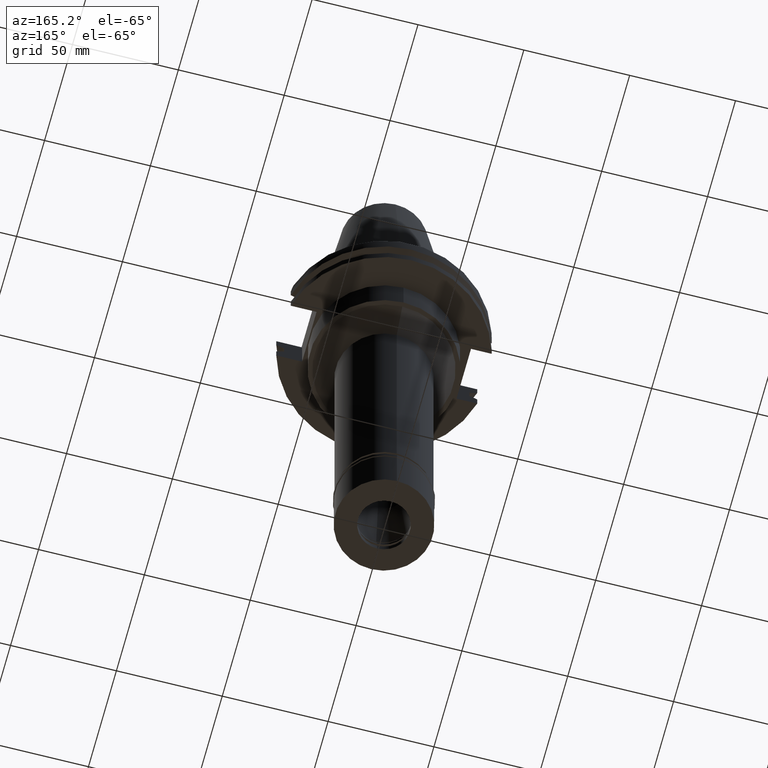
[diagram: clean part render]
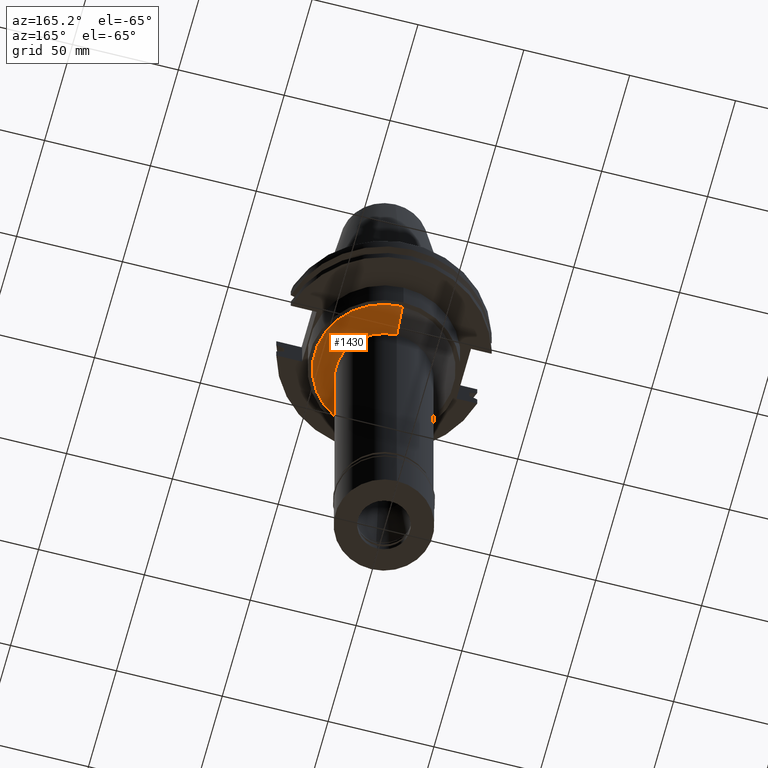
[diagram: same view with one face highlighted and labeled with its STEP entity id]
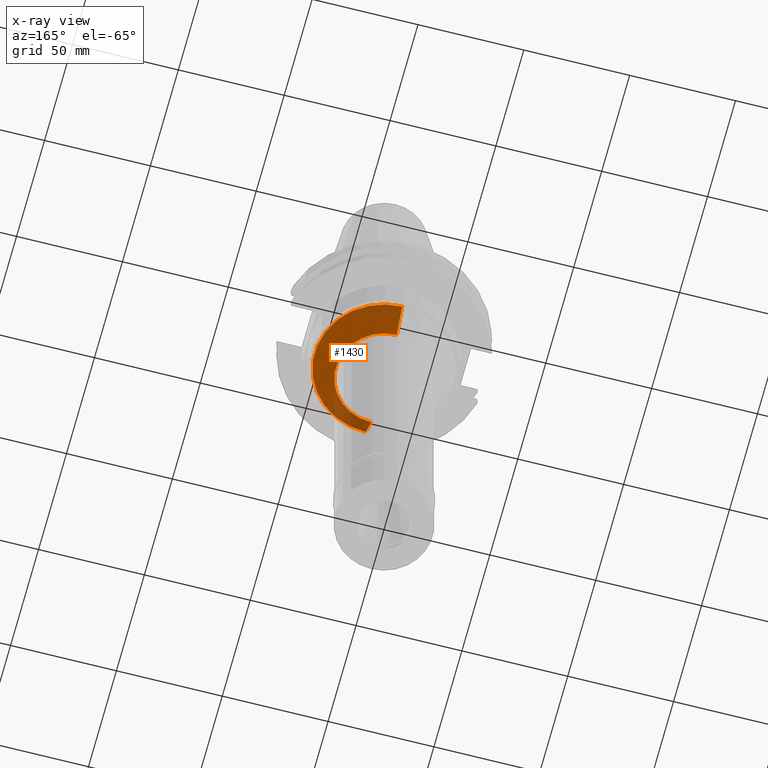
[diagram: x-ray of the same camera — body ghosted, the highlighted face saturated]
A machine part, auxiliary view. The second image highlights one B-rep face of the part: STEP entity #1430.
The next image is the same camera in x-ray: the body ghosted, the highlighted face saturated — about 13% of this face is hidden behind the body in this view.
In plain terms, the highlighted conical surface has half-angle 45 deg.
Its self-contained STEP definition (entity closure, byte-faithful):
#83 = VECTOR ( 'NONE', #1990, 1000.000000000000114 ) ;
#256 = EDGE_CURVE ( 'NONE', #832, #613, #385, .T. ) ;
#354 = DIRECTION ( 'NONE',  ( 0.0000000000000000000, 0.0000000000000000000, -1.000000000000000000 ) ) ;
#385 = LINE ( 'NONE', #419, #3090 ) ;
#410 = ORIENTED_EDGE ( 'NONE', *, *, #2944, .T. ) ;
#419 = CARTESIAN_POINT ( 'NONE',  ( 0.0000000000000000000, -32.75000000000000000, -35.00000000000000000 ) ) ;
#556 = CARTESIAN_POINT ( 'NONE',  ( 0.0000000000000000000, 0.0000000000000000000, -35.00000000000000000 ) ) ;
#559 = VERTEX_POINT ( 'NONE', #1602 ) ;
#590 = DIRECTION ( 'NONE',  ( 0.0000000000000000000, 1.000000000000000000, 0.0000000000000000000 ) ) ;
#603 = CARTESIAN_POINT ( 'NONE',  ( 0.0000000000000000000, 22.75000000000000000, -45.00000000000000000 ) ) ;
#613 = VERTEX_POINT ( 'NONE', #3152 ) ;
#832 = VERTEX_POINT ( 'NONE', #1390 ) ;
#889 = ORIENTED_EDGE ( 'NONE', *, *, #256, .T. ) ;
#897 = DIRECTION ( 'NONE',  ( 0.0000000000000000000, 0.7071067811865474617, -0.7071067811865474617 ) ) ;
#962 = LINE ( 'NONE', #1250, #83 ) ;
#972 = EDGE_CURVE ( 'NONE', #559, #1207, #962, .T. ) ;
#1155 = DIRECTION ( 'NONE',  ( 0.0000000000000000000, 0.0000000000000000000, -1.000000000000000000 ) ) ;
#1198 = EDGE_CURVE ( 'NONE', #1207, #613, #1439, .T. ) ;
#1207 = VERTEX_POINT ( 'NONE', #603 ) ;
#1250 = CARTESIAN_POINT ( 'NONE',  ( 0.0000000000000000000, 32.75000000000000000, -35.00000000000000000 ) ) ;
#1272 = EDGE_LOOP ( 'NONE', ( #410, #889, #1668, #2750 ) ) ;
#1302 = AXIS2_PLACEMENT_3D ( 'NONE', #556, #354, #590 ) ;
#1390 = CARTESIAN_POINT ( 'NONE',  ( 0.0000000000000000000, -32.75000000000000000, -35.00000000000000000 ) ) ;
#1430 = ADVANCED_FACE ( 'NONE', ( #1937 ), #2673, .T. ) ;
#1439 = CIRCLE ( 'NONE', #2564, 22.75000000000000000 ) ;
#1459 = DIRECTION ( 'NONE',  ( 0.0000000000000000000, 0.0000000000000000000, 1.000000000000000000 ) ) ;
#1509 = CIRCLE ( 'NONE', #1302, 32.75000000000000000 ) ;
#1602 = CARTESIAN_POINT ( 'NONE',  ( 0.0000000000000000000, 32.75000000000000000, -35.00000000000000000 ) ) ;
#1668 = ORIENTED_EDGE ( 'NONE', *, *, #1198, .F. ) ;
#1755 = AXIS2_PLACEMENT_3D ( 'NONE', #3220, #1459, #1903 ) ;
#1903 = DIRECTION ( 'NONE',  ( 0.0000000000000000000, 1.000000000000000000, 0.0000000000000000000 ) ) ;
#1937 = FACE_OUTER_BOUND ( 'NONE', #1272, .T. ) ;
#1990 = DIRECTION ( 'NONE',  ( 0.0000000000000000000, -0.7071067811865474617, -0.7071067811865474617 ) ) ;
#2137 = DIRECTION ( 'NONE',  ( 0.0000000000000000000, 1.000000000000000000, 0.0000000000000000000 ) ) ;
#2431 = CARTESIAN_POINT ( 'NONE',  ( 0.0000000000000000000, 0.0000000000000000000, -45.00000000000000000 ) ) ;
#2564 = AXIS2_PLACEMENT_3D ( 'NONE', #2431, #1155, #2137 ) ;
#2673 = CONICAL_SURFACE ( 'NONE', #1755, 27.75000000000000000, 0.7853981633972997312 ) ;
#2750 = ORIENTED_EDGE ( 'NONE', *, *, #972, .F. ) ;
#2944 = EDGE_CURVE ( 'NONE', #559, #832, #1509, .T. ) ;
#3090 = VECTOR ( 'NONE', #897, 1000.000000000000114 ) ;
#3152 = CARTESIAN_POINT ( 'NONE',  ( 0.0000000000000000000, -22.75000000000000000, -45.00000000000000000 ) ) ;
#3220 = CARTESIAN_POINT ( 'NONE',  ( 0.0000000000000000000, 0.0000000000000000000, -40.00000000000000000 ) ) ;